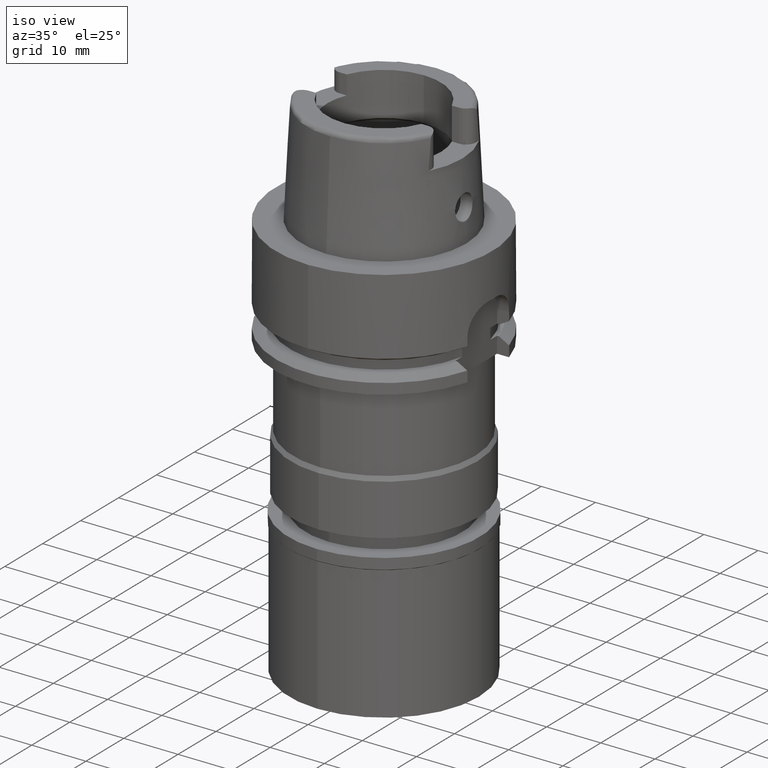
[diagram: clean part render]
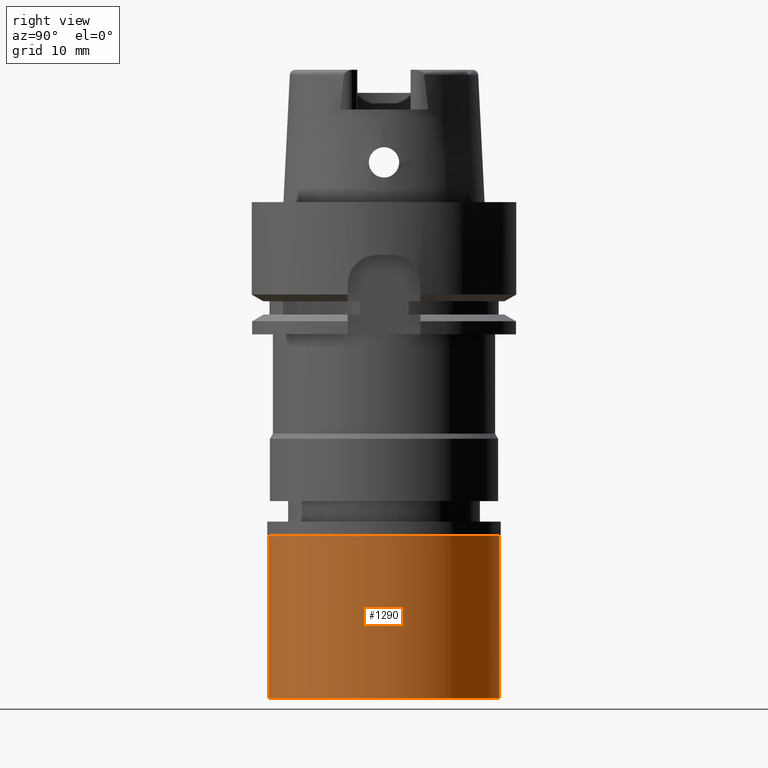
[diagram: tour spotlight — one face highlighted and labeled with its STEP entity id]
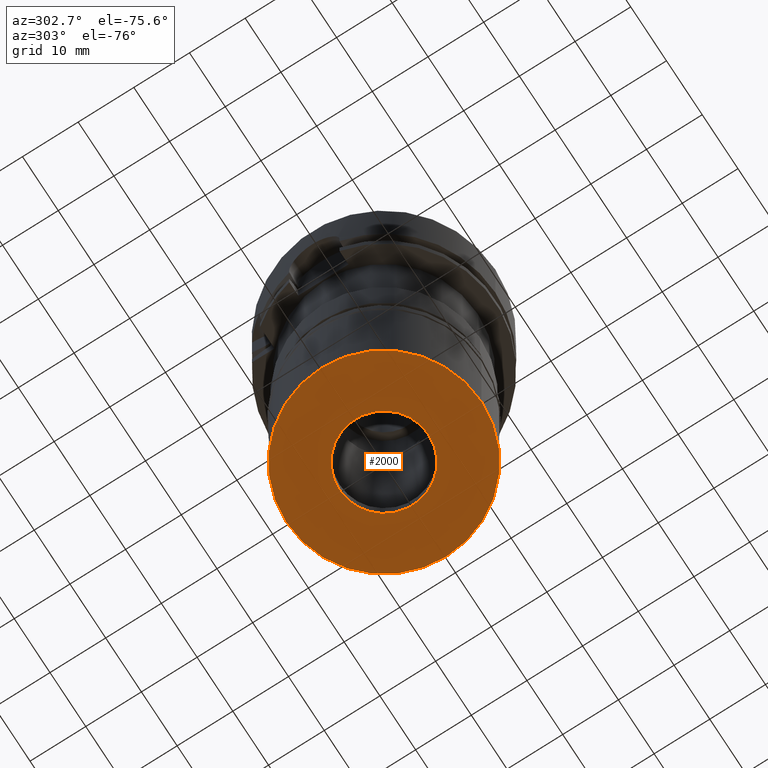
[diagram: tour spotlight — one face highlighted and labeled with its STEP entity id]
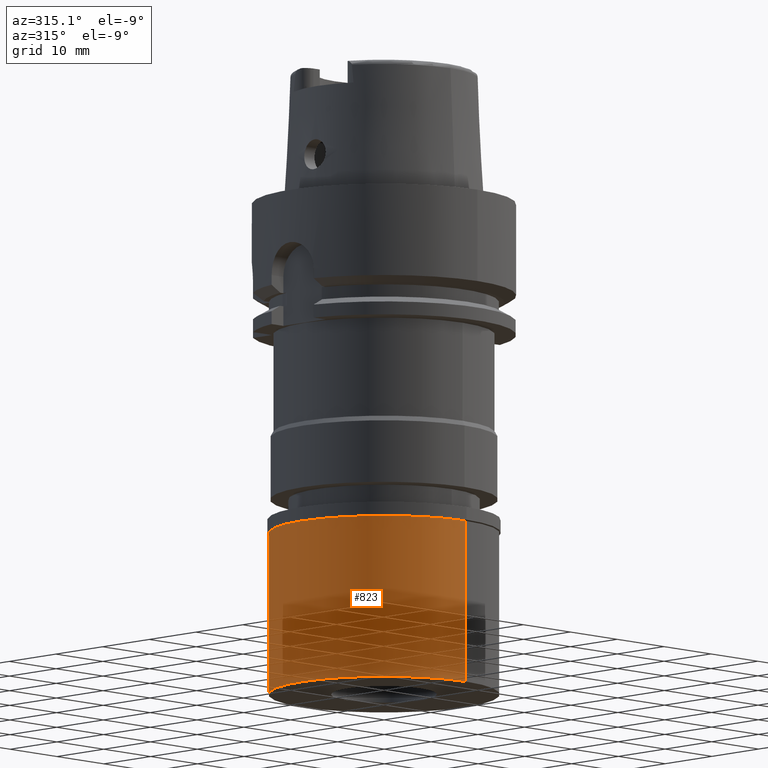
[diagram: tour spotlight — one face highlighted and labeled with its STEP entity id]
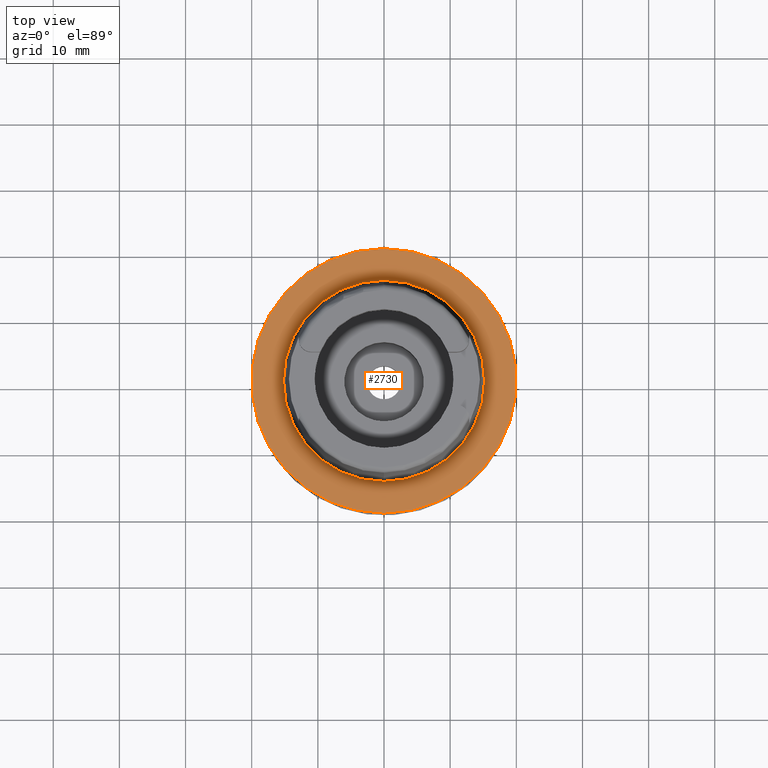
[diagram: tour spotlight — one face highlighted and labeled with its STEP entity id]
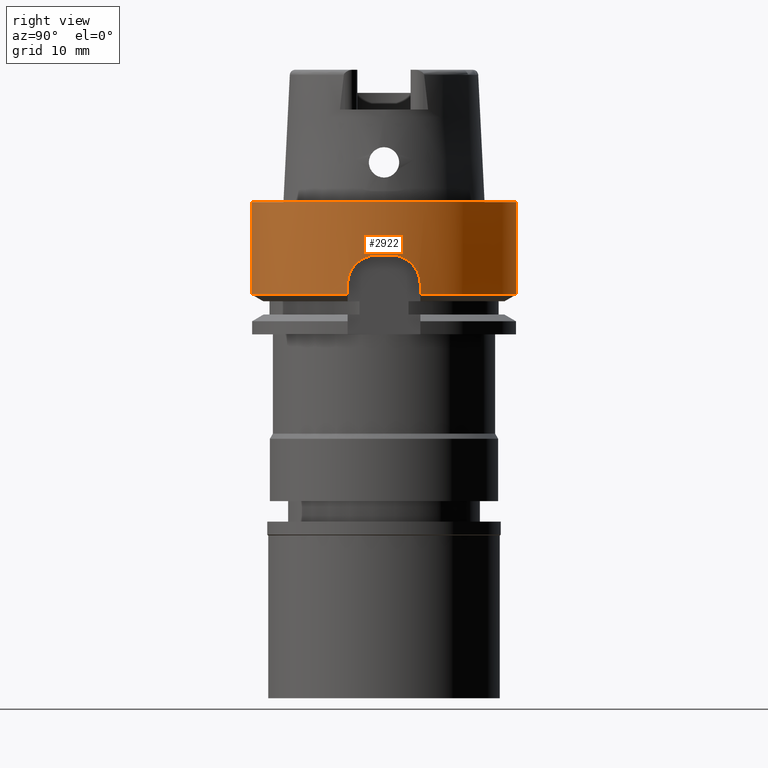
[diagram: tour spotlight — one face highlighted and labeled with its STEP entity id]
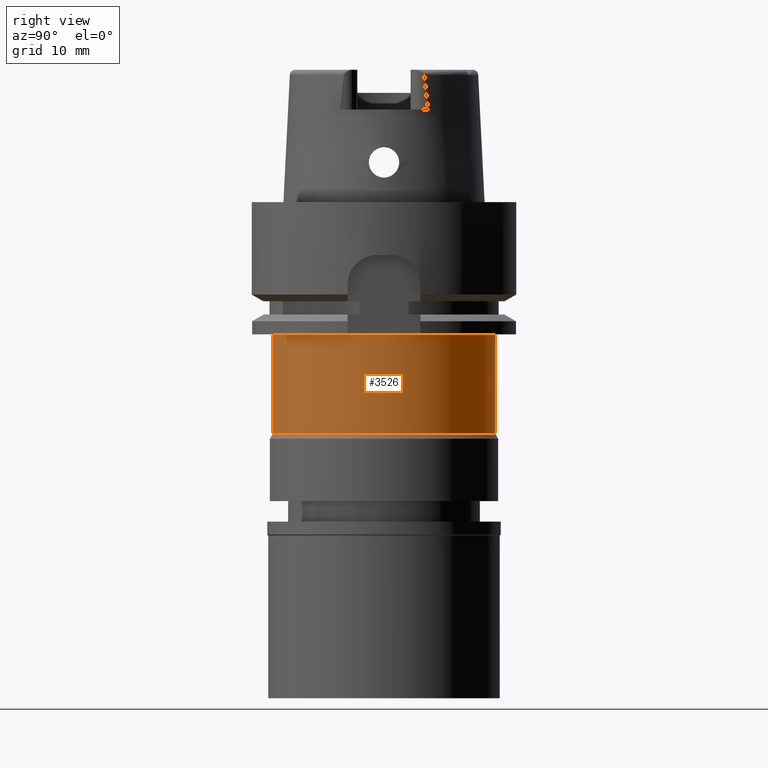
[diagram: tour spotlight — one face highlighted and labeled with its STEP entity id]
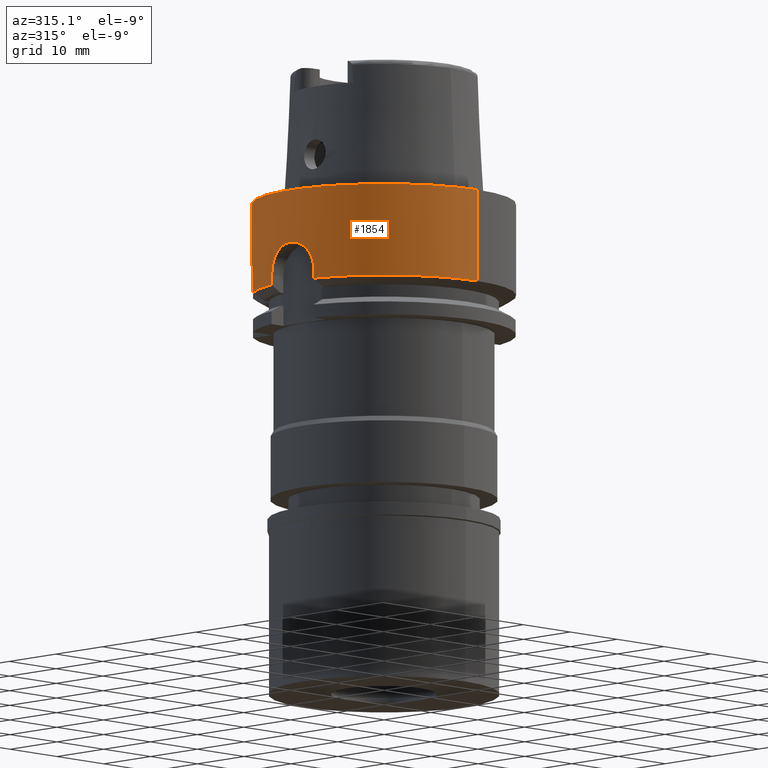
[diagram: tour spotlight — one face highlighted and labeled with its STEP entity id]
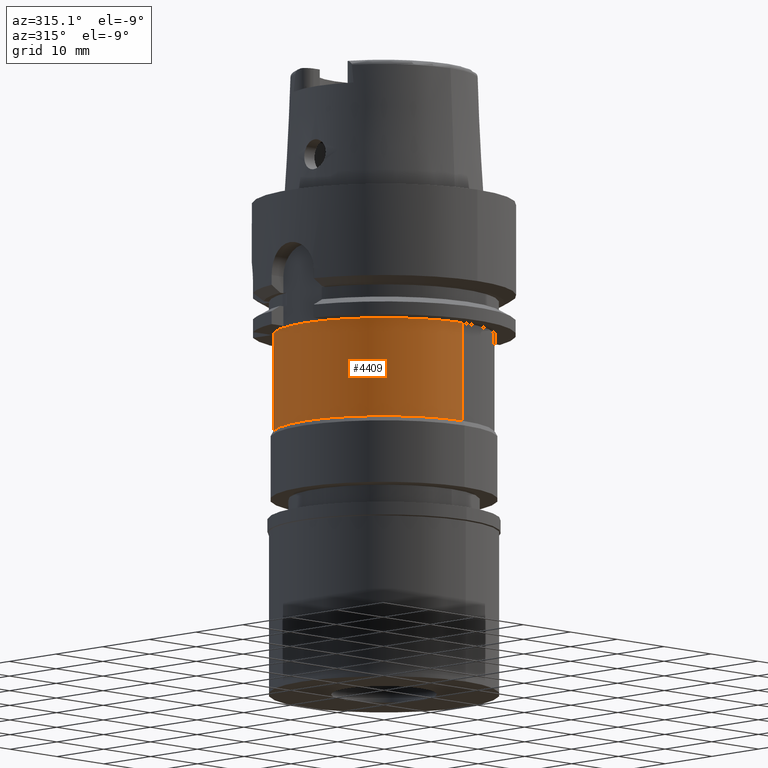
[diagram: tour spotlight — one face highlighted and labeled with its STEP entity id]
A machine part: a face-by-face anatomy tour. The part has 127 B-rep faces; the first image is the clean iso view, then the 8 largest visible faces are spotlighted one at a time (largest first), each with its STEP entity span.

Face 1 — right view, entity #1290. In plain terms, the highlighted cylindrical surface (partial cylindrical patch) has radius 17.5 mm, axis along (0, 0, -1).
Definition (entity closure, byte-faithful):
#6 = ORIENTED_EDGE ( 'NONE', *, *, #3975, .T. ) ;
#263 = ORIENTED_EDGE ( 'NONE', *, *, #3944, .T. ) ;
#324 = DIRECTION ( 'NONE',  ( 0.0000000000000000000, 0.0000000000000000000, -1.000000000000000000 ) ) ;
#463 = CARTESIAN_POINT ( 'NONE',  ( 0.0000000000000000000, -17.50000000000000000, -2.100000000000000089 ) ) ;
#897 = DIRECTION ( 'NONE',  ( 0.0000000000000000000, 0.0000000000000000000, -1.000000000000000000 ) ) ;
#952 = CARTESIAN_POINT ( 'NONE',  ( 0.0000000000000000000, 0.0000000000000000000, 0.0000000000000000000 ) ) ;
#1075 = CARTESIAN_POINT ( 'NONE',  ( 0.0000000000000000000, 17.50000000000000000, -2.100000000000000089 ) ) ;
#1290 = ADVANCED_FACE ( 'NONE', ( #4638 ), #3883, .T. ) ;
#1627 = ORIENTED_EDGE ( 'NONE', *, *, #3663, .F. ) ;
#1872 = CARTESIAN_POINT ( 'NONE',  ( 0.0000000000000000000, 17.50000000000000000, -26.70000000000000284 ) ) ;
#1922 = CIRCLE ( 'NONE', #3497, 17.50000000000000000 ) ;
#2444 = EDGE_LOOP ( 'NONE', ( #6, #263, #3719, #1627 ) ) ;
#2528 = CARTESIAN_POINT ( 'NONE',  ( 0.0000000000000000000, 0.0000000000000000000, -2.100000000000000089 ) ) ;
#2558 = DIRECTION ( 'NONE',  ( 0.0000000000000000000, 0.0000000000000000000, -1.000000000000000000 ) ) ;
#2644 = DIRECTION ( 'NONE',  ( 0.0000000000000000000, -1.000000000000000000, 0.0000000000000000000 ) ) ;
#2657 = CARTESIAN_POINT ( 'NONE',  ( 0.0000000000000000000, 17.50000000000000000, -2.100000000000000089 ) ) ;
#2770 = VECTOR ( 'NONE', #324, 1000.000000000000000 ) ;
#2910 = CARTESIAN_POINT ( 'NONE',  ( 0.0000000000000000000, -17.50000000000000000, -2.100000000000000089 ) ) ;
#3078 = DIRECTION ( 'NONE',  ( 0.0000000000000000000, 0.0000000000000000000, -1.000000000000000000 ) ) ;
#3100 = AXIS2_PLACEMENT_3D ( 'NONE', #952, #3078, #2644 ) ;
#3122 = CIRCLE ( 'NONE', #3930, 17.50000000000000000 ) ;
#3363 = VERTEX_POINT ( 'NONE', #2657 ) ;
#3457 = DIRECTION ( 'NONE',  ( 0.0000000000000000000, 0.0000000000000000000, 1.000000000000000000 ) ) ;
#3483 = EDGE_CURVE ( 'NONE', #4363, #3502, #3122, .T. ) ;
#3492 = CARTESIAN_POINT ( 'NONE',  ( 0.0000000000000000000, -17.50000000000000000, -26.70000000000000284 ) ) ;
#3497 = AXIS2_PLACEMENT_3D ( 'NONE', #2528, #2558, #4239 ) ;
#3502 = VERTEX_POINT ( 'NONE', #1872 ) ;
#3540 = DIRECTION ( 'NONE',  ( 0.0000000000000000000, -1.000000000000000000, 0.0000000000000000000 ) ) ;
#3663 = EDGE_CURVE ( 'NONE', #3363, #3502, #4504, .T. ) ;
#3719 = ORIENTED_EDGE ( 'NONE', *, *, #3483, .T. ) ;
#3883 = CYLINDRICAL_SURFACE ( 'NONE', #3100, 17.50000000000000000 ) ;
#3930 = AXIS2_PLACEMENT_3D ( 'NONE', #5125, #3457, #3540 ) ;
#3944 = EDGE_CURVE ( 'NONE', #4782, #4363, #4969, .T. ) ;
#3975 = EDGE_CURVE ( 'NONE', #3363, #4782, #1922, .T. ) ;
#4015 = VECTOR ( 'NONE', #897, 1000.000000000000000 ) ;
#4239 = DIRECTION ( 'NONE',  ( 0.0000000000000000000, 1.000000000000000000, 0.0000000000000000000 ) ) ;
#4363 = VERTEX_POINT ( 'NONE', #3492 ) ;
#4504 = LINE ( 'NONE', #1075, #2770 ) ;
#4638 = FACE_OUTER_BOUND ( 'NONE', #2444, .T. ) ;
#4782 = VERTEX_POINT ( 'NONE', #2910 ) ;
#4969 = LINE ( 'NONE', #463, #4015 ) ;
#5125 = CARTESIAN_POINT ( 'NONE',  ( 0.0000000000000000000, 0.0000000000000000000, -26.70000000000000284 ) ) ;

Face 2 — auxiliary view, entity #2000. In plain terms, the highlighted planar face has unit normal (0, 0, -1).
Definition (entity closure, byte-faithful):
#19 = ORIENTED_EDGE ( 'NONE', *, *, #4533, .F. ) ;
#147 = ORIENTED_EDGE ( 'NONE', *, *, #4403, .F. ) ;
#276 = CARTESIAN_POINT ( 'NONE',  ( 0.0000000000000000000, 0.0000000000000000000, -26.70000000000000284 ) ) ;
#345 = CIRCLE ( 'NONE', #3500, 17.50000000000000000 ) ;
#619 = CARTESIAN_POINT ( 'NONE',  ( 0.0000000000000000000, 0.0000000000000000000, -26.70000000000000284 ) ) ;
#620 = AXIS2_PLACEMENT_3D ( 'NONE', #276, #3589, #733 ) ;
#683 = EDGE_LOOP ( 'NONE', ( #147, #4132 ) ) ;
#733 = DIRECTION ( 'NONE',  ( 0.0000000000000000000, -1.000000000000000000, 0.0000000000000000000 ) ) ;
#847 = PLANE ( 'NONE',  #4691 ) ;
#868 = AXIS2_PLACEMENT_3D ( 'NONE', #1180, #2447, #4847 ) ;
#873 = EDGE_LOOP ( 'NONE', ( #19, #4673 ) ) ;
#906 = EDGE_CURVE ( 'NONE', #1287, #4331, #4973, .T. ) ;
#1180 = CARTESIAN_POINT ( 'NONE',  ( 0.0000000000000000000, 0.0000000000000000000, -26.70000000000000284 ) ) ;
#1261 = DIRECTION ( 'NONE',  ( 0.0000000000000000000, -1.000000000000000000, 0.0000000000000000000 ) ) ;
#1287 = VERTEX_POINT ( 'NONE', #3505 ) ;
#1872 = CARTESIAN_POINT ( 'NONE',  ( 0.0000000000000000000, 17.50000000000000000, -26.70000000000000284 ) ) ;
#2000 = ADVANCED_FACE ( 'NONE', ( #5011, #2425 ), #847, .T. ) ;
#2110 = CARTESIAN_POINT ( 'NONE',  ( 0.0000000000000000000, 8.000000000000000000, -26.70000000000000284 ) ) ;
#2425 = FACE_BOUND ( 'NONE', #873, .T. ) ;
#2447 = DIRECTION ( 'NONE',  ( 0.0000000000000000000, 0.0000000000000000000, -1.000000000000000000 ) ) ;
#3066 = DIRECTION ( 'NONE',  ( 0.0000000000000000000, 1.000000000000000000, 0.0000000000000000000 ) ) ;
#3122 = CIRCLE ( 'NONE', #3930, 17.50000000000000000 ) ;
#3217 = CIRCLE ( 'NONE', #868, 8.000000000000000000 ) ;
#3457 = DIRECTION ( 'NONE',  ( 0.0000000000000000000, 0.0000000000000000000, 1.000000000000000000 ) ) ;
#3483 = EDGE_CURVE ( 'NONE', #4363, #3502, #3122, .T. ) ;
#3492 = CARTESIAN_POINT ( 'NONE',  ( 0.0000000000000000000, -17.50000000000000000, -26.70000000000000284 ) ) ;
#3500 = AXIS2_PLACEMENT_3D ( 'NONE', #619, #4412, #3066 ) ;
#3502 = VERTEX_POINT ( 'NONE', #1872 ) ;
#3505 = CARTESIAN_POINT ( 'NONE',  ( 0.0000000000000000000, -8.000000000000000000, -26.70000000000000284 ) ) ;
#3540 = DIRECTION ( 'NONE',  ( 0.0000000000000000000, -1.000000000000000000, 0.0000000000000000000 ) ) ;
#3589 = DIRECTION ( 'NONE',  ( 0.0000000000000000000, 0.0000000000000000000, -1.000000000000000000 ) ) ;
#3694 = DIRECTION ( 'NONE',  ( 0.0000000000000000000, 0.0000000000000000000, -1.000000000000000000 ) ) ;
#3930 = AXIS2_PLACEMENT_3D ( 'NONE', #5125, #3457, #3540 ) ;
#4112 = CARTESIAN_POINT ( 'NONE',  ( 0.0000000000000000000, 0.0000000000000000000, -26.70000000000000284 ) ) ;
#4132 = ORIENTED_EDGE ( 'NONE', *, *, #3483, .F. ) ;
#4331 = VERTEX_POINT ( 'NONE', #2110 ) ;
#4363 = VERTEX_POINT ( 'NONE', #3492 ) ;
#4403 = EDGE_CURVE ( 'NONE', #3502, #4363, #345, .T. ) ;
#4412 = DIRECTION ( 'NONE',  ( 0.0000000000000000000, 0.0000000000000000000, 1.000000000000000000 ) ) ;
#4533 = EDGE_CURVE ( 'NONE', #4331, #1287, #3217, .T. ) ;
#4673 = ORIENTED_EDGE ( 'NONE', *, *, #906, .F. ) ;
#4691 = AXIS2_PLACEMENT_3D ( 'NONE', #4112, #3694, #1261 ) ;
#4847 = DIRECTION ( 'NONE',  ( 0.0000000000000000000, 1.000000000000000000, 0.0000000000000000000 ) ) ;
#4973 = CIRCLE ( 'NONE', #620, 8.000000000000000000 ) ;
#5011 = FACE_OUTER_BOUND ( 'NONE', #683, .T. ) ;
#5125 = CARTESIAN_POINT ( 'NONE',  ( 0.0000000000000000000, 0.0000000000000000000, -26.70000000000000284 ) ) ;

Face 3 — auxiliary view, entity #823. In plain terms, the highlighted cylindrical surface (partial cylindrical patch) has radius 17.5 mm, axis along (0, 0, -1).
Definition (entity closure, byte-faithful):
#324 = DIRECTION ( 'NONE',  ( 0.0000000000000000000, 0.0000000000000000000, -1.000000000000000000 ) ) ;
#345 = CIRCLE ( 'NONE', #3500, 17.50000000000000000 ) ;
#463 = CARTESIAN_POINT ( 'NONE',  ( 0.0000000000000000000, -17.50000000000000000, -2.100000000000000089 ) ) ;
#473 = DIRECTION ( 'NONE',  ( 0.0000000000000000000, -1.000000000000000000, 0.0000000000000000000 ) ) ;
#493 = FACE_OUTER_BOUND ( 'NONE', #636, .T. ) ;
#619 = CARTESIAN_POINT ( 'NONE',  ( 0.0000000000000000000, 0.0000000000000000000, -26.70000000000000284 ) ) ;
#636 = EDGE_LOOP ( 'NONE', ( #2193, #4515, #4682, #1525 ) ) ;
#823 = ADVANCED_FACE ( 'NONE', ( #493 ), #5097, .T. ) ;
#897 = DIRECTION ( 'NONE',  ( 0.0000000000000000000, 0.0000000000000000000, -1.000000000000000000 ) ) ;
#1075 = CARTESIAN_POINT ( 'NONE',  ( 0.0000000000000000000, 17.50000000000000000, -2.100000000000000089 ) ) ;
#1346 = CARTESIAN_POINT ( 'NONE',  ( 0.0000000000000000000, 0.0000000000000000000, 0.0000000000000000000 ) ) ;
#1525 = ORIENTED_EDGE ( 'NONE', *, *, #3663, .T. ) ;
#1872 = CARTESIAN_POINT ( 'NONE',  ( 0.0000000000000000000, 17.50000000000000000, -26.70000000000000284 ) ) ;
#2193 = ORIENTED_EDGE ( 'NONE', *, *, #4403, .T. ) ;
#2480 = DIRECTION ( 'NONE',  ( 0.0000000000000000000, 0.0000000000000000000, -1.000000000000000000 ) ) ;
#2657 = CARTESIAN_POINT ( 'NONE',  ( 0.0000000000000000000, 17.50000000000000000, -2.100000000000000089 ) ) ;
#2701 = AXIS2_PLACEMENT_3D ( 'NONE', #1346, #4275, #3862 ) ;
#2768 = CIRCLE ( 'NONE', #4955, 17.50000000000000000 ) ;
#2770 = VECTOR ( 'NONE', #324, 1000.000000000000000 ) ;
#2910 = CARTESIAN_POINT ( 'NONE',  ( 0.0000000000000000000, -17.50000000000000000, -2.100000000000000089 ) ) ;
#3066 = DIRECTION ( 'NONE',  ( 0.0000000000000000000, 1.000000000000000000, 0.0000000000000000000 ) ) ;
#3221 = EDGE_CURVE ( 'NONE', #4782, #3363, #2768, .T. ) ;
#3363 = VERTEX_POINT ( 'NONE', #2657 ) ;
#3492 = CARTESIAN_POINT ( 'NONE',  ( 0.0000000000000000000, -17.50000000000000000, -26.70000000000000284 ) ) ;
#3500 = AXIS2_PLACEMENT_3D ( 'NONE', #619, #4412, #3066 ) ;
#3502 = VERTEX_POINT ( 'NONE', #1872 ) ;
#3663 = EDGE_CURVE ( 'NONE', #3363, #3502, #4504, .T. ) ;
#3862 = DIRECTION ( 'NONE',  ( 0.0000000000000000000, -1.000000000000000000, 0.0000000000000000000 ) ) ;
#3944 = EDGE_CURVE ( 'NONE', #4782, #4363, #4969, .T. ) ;
#4015 = VECTOR ( 'NONE', #897, 1000.000000000000000 ) ;
#4225 = CARTESIAN_POINT ( 'NONE',  ( 0.0000000000000000000, 0.0000000000000000000, -2.100000000000000089 ) ) ;
#4275 = DIRECTION ( 'NONE',  ( 0.0000000000000000000, 0.0000000000000000000, -1.000000000000000000 ) ) ;
#4363 = VERTEX_POINT ( 'NONE', #3492 ) ;
#4403 = EDGE_CURVE ( 'NONE', #3502, #4363, #345, .T. ) ;
#4412 = DIRECTION ( 'NONE',  ( 0.0000000000000000000, 0.0000000000000000000, 1.000000000000000000 ) ) ;
#4504 = LINE ( 'NONE', #1075, #2770 ) ;
#4515 = ORIENTED_EDGE ( 'NONE', *, *, #3944, .F. ) ;
#4682 = ORIENTED_EDGE ( 'NONE', *, *, #3221, .T. ) ;
#4782 = VERTEX_POINT ( 'NONE', #2910 ) ;
#4955 = AXIS2_PLACEMENT_3D ( 'NONE', #4225, #2480, #473 ) ;
#4969 = LINE ( 'NONE', #463, #4015 ) ;
#5097 = CYLINDRICAL_SURFACE ( 'NONE', #2701, 17.50000000000000000 ) ;

Face 4 — top view, entity #2730. In plain terms, the highlighted planar face has unit normal (0, 0, 1).
Definition (entity closure, byte-faithful):
#224 = DIRECTION ( 'NONE',  ( 0.0000000000000000000, 1.000000000000000000, 0.0000000000000000000 ) ) ;
#495 = VERTEX_POINT ( 'NONE', #1518 ) ;
#884 = DIRECTION ( 'NONE',  ( 0.0000000000000000000, 0.0000000000000000000, 1.000000000000000000 ) ) ;
#928 = ORIENTED_EDGE ( 'NONE', *, *, #1730, .F. ) ;
#942 = AXIS2_PLACEMENT_3D ( 'NONE', #4546, #884, #3816 ) ;
#1049 = DIRECTION ( 'NONE',  ( 0.0000000000000000000, 0.0000000000000000000, 1.000000000000000000 ) ) ;
#1174 = EDGE_LOOP ( 'NONE', ( #2499, #928 ) ) ;
#1216 = FACE_BOUND ( 'NONE', #1174, .T. ) ;
#1230 = EDGE_CURVE ( 'NONE', #495, #2617, #3902, .T. ) ;
#1314 = CIRCLE ( 'NONE', #4382, 20.00000000000000000 ) ;
#1518 = CARTESIAN_POINT ( 'NONE',  ( 0.0000000000000000000, -20.00000000000000000, -1.705302565823999875E-13 ) ) ;
#1543 = AXIS2_PLACEMENT_3D ( 'NONE', #3657, #1606, #3267 ) ;
#1569 = ORIENTED_EDGE ( 'NONE', *, *, #1230, .F. ) ;
#1577 = VERTEX_POINT ( 'NONE', #1805 ) ;
#1606 = DIRECTION ( 'NONE',  ( 0.0000000000000000000, 0.0000000000000000000, -1.000000000000000000 ) ) ;
#1684 = DIRECTION ( 'NONE',  ( 0.0000000000000000000, 0.0000000000000000000, 1.000000000000000000 ) ) ;
#1730 = EDGE_CURVE ( 'NONE', #5264, #1577, #5219, .T. ) ;
#1746 = AXIS2_PLACEMENT_3D ( 'NONE', #5231, #1049, #224 ) ;
#1805 = CARTESIAN_POINT ( 'NONE',  ( 0.0000000000000000000, 15.20000663301000010, 7.958078640512999903E-13 ) ) ;
#2007 = CARTESIAN_POINT ( 'NONE',  ( 0.0000000000000000000, 20.00000000000000000, -9.473903143467999112E-14 ) ) ;
#2113 = CARTESIAN_POINT ( 'NONE',  ( 0.0000000000000000000, 0.0000000000000000000, 7.958078640512999903E-13 ) ) ;
#2150 = CARTESIAN_POINT ( 'NONE',  ( 0.0000000000000000000, -15.20000663301000010, 4.547473508865000658E-13 ) ) ;
#2168 = CIRCLE ( 'NONE', #1746, 15.20000663301000010 ) ;
#2499 = ORIENTED_EDGE ( 'NONE', *, *, #3547, .F. ) ;
#2617 = VERTEX_POINT ( 'NONE', #2007 ) ;
#2730 = ADVANCED_FACE ( 'NONE', ( #5079, #1216 ), #5048, .T. ) ;
#2829 = AXIS2_PLACEMENT_3D ( 'NONE', #2113, #1684, #3789 ) ;
#2848 = CARTESIAN_POINT ( 'NONE',  ( 0.0000000000000000000, 0.0000000000000000000, -1.705302565823999875E-13 ) ) ;
#3267 = DIRECTION ( 'NONE',  ( 0.0000000000000000000, -1.000000000000000000, 0.0000000000000000000 ) ) ;
#3547 = EDGE_CURVE ( 'NONE', #1577, #5264, #2168, .T. ) ;
#3657 = CARTESIAN_POINT ( 'NONE',  ( 0.0000000000000000000, 0.0000000000000000000, -1.705302565823999875E-13 ) ) ;
#3789 = DIRECTION ( 'NONE',  ( 0.0000000000000000000, -1.000000000000000000, 0.0000000000000000000 ) ) ;
#3816 = DIRECTION ( 'NONE',  ( 1.000000000000000000, 0.0000000000000000000, 0.0000000000000000000 ) ) ;
#3902 = CIRCLE ( 'NONE', #1543, 20.00000000000000000 ) ;
#4055 = EDGE_LOOP ( 'NONE', ( #4838, #1569 ) ) ;
#4382 = AXIS2_PLACEMENT_3D ( 'NONE', #2848, #4890, #5326 ) ;
#4546 = CARTESIAN_POINT ( 'NONE',  ( 0.0000000000000000000, 0.0000000000000000000, 0.0000000000000000000 ) ) ;
#4838 = ORIENTED_EDGE ( 'NONE', *, *, #5033, .F. ) ;
#4890 = DIRECTION ( 'NONE',  ( 0.0000000000000000000, 0.0000000000000000000, -1.000000000000000000 ) ) ;
#5033 = EDGE_CURVE ( 'NONE', #2617, #495, #1314, .T. ) ;
#5048 = PLANE ( 'NONE',  #942 ) ;
#5079 = FACE_OUTER_BOUND ( 'NONE', #4055, .T. ) ;
#5219 = CIRCLE ( 'NONE', #2829, 15.20000663301000010 ) ;
#5231 = CARTESIAN_POINT ( 'NONE',  ( 0.0000000000000000000, 0.0000000000000000000, 7.958078640512999903E-13 ) ) ;
#5264 = VERTEX_POINT ( 'NONE', #2150 ) ;
#5326 = DIRECTION ( 'NONE',  ( 0.0000000000000000000, 1.000000000000000000, 0.0000000000000000000 ) ) ;

Face 5 — right view, entity #2922. In plain terms, the highlighted cylindrical surface (partial cylindrical patch) has radius 20 mm, axis along (0, 0, 1).
Definition (entity closure, byte-faithful):
#8 = VERTEX_POINT ( 'NONE', #1834 ) ;
#55 = VERTEX_POINT ( 'NONE', #3265 ) ;
#86 = ORIENTED_EDGE ( 'NONE', *, *, #2159, .T. ) ;
#127 = CARTESIAN_POINT ( 'NONE',  ( 19.34392790663267192, 5.081397619116151176, -10.59153971343834932 ) ) ;
#154 = CARTESIAN_POINT ( 'NONE',  ( 19.32104445937009984, 5.167284975352268717, -10.80183977555919839 ) ) ;
#184 = CARTESIAN_POINT ( 'NONE',  ( 19.64372892378963442, 3.757534281542509014, -8.940804196875246745 ) ) ;
#192 = CARTESIAN_POINT ( 'NONE',  ( 19.22888438501999531, 5.500000482516000488, -13.97927001444999817 ) ) ;
#200 = ORIENTED_EDGE ( 'NONE', *, *, #854, .F. ) ;
#235 = CARTESIAN_POINT ( 'NONE',  ( 19.79878724724450834, -2.832227449863178315, -8.387867633450946769 ) ) ;
#259 = CARTESIAN_POINT ( 'NONE',  ( 19.56709572652412632, -4.138719417116023536, -9.275258457733377426 ) ) ;
#285 = CARTESIAN_POINT ( 'NONE',  ( 19.69235738726364460, -3.494442703320565169, -8.754635223990364423 ) ) ;
#308 = CARTESIAN_POINT ( 'NONE',  ( 19.86146910056350734, -2.348871068550091312, -8.206248359973814743 ) ) ;
#334 = CARTESIAN_POINT ( 'NONE',  ( 19.70267213809070839, -3.435873196015323039, -8.716183529042982769 ) ) ;
#344 = VECTOR ( 'NONE', #2388, 1000.000000000000000 ) ;
#415 = CARTESIAN_POINT ( 'NONE',  ( 19.32339585466795739, -5.158492913146010217, -10.78041865483601391 ) ) ;
#443 = ORIENTED_EDGE ( 'NONE', *, *, #2366, .T. ) ;
#495 = VERTEX_POINT ( 'NONE', #1518 ) ;
#500 = CARTESIAN_POINT ( 'NONE',  ( 19.80285706674259316, 2.801246046156184111, -8.376054429798854173 ) ) ;
#561 = CARTESIAN_POINT ( 'NONE',  ( 19.45429869781315446, 4.644412652590448332, -9.855112538904846176 ) ) ;
#589 = CARTESIAN_POINT ( 'NONE',  ( 19.37460722628846810, 4.968141091675939869, -10.35745565407660074 ) ) ;
#595 = CARTESIAN_POINT ( 'NONE',  ( 19.22888452303000051, -5.500000000000000000, -12.50000000000000000 ) ) ;
#616 = CARTESIAN_POINT ( 'NONE',  ( 19.59903263455299438, 3.985266675279852233, -9.129532234788975131 ) ) ;
#624 = DIRECTION ( 'NONE',  ( 0.0000000000000000000, 0.0000000000000000000, 1.000000000000000000 ) ) ;
#650 = CARTESIAN_POINT ( 'NONE',  ( 19.57603633007878230, -4.096177702054417225, -9.234171355925163027 ) ) ;
#676 = ORIENTED_EDGE ( 'NONE', *, *, #2087, .F. ) ;
#681 = CARTESIAN_POINT ( 'NONE',  ( 0.0000000000000000000, 20.00000000000000000, -9.473903143467999112E-14 ) ) ;
#693 = CARTESIAN_POINT ( 'NONE',  ( 19.82004290328007912, -2.676439156258794139, -8.323919576283993038 ) ) ;
#742 = CARTESIAN_POINT ( 'NONE',  ( 19.56053743362919306, -4.169621998343442826, -9.305705765954444431 ) ) ;
#854 = EDGE_CURVE ( 'NONE', #2617, #55, #4795, .T. ) ;
#896 = EDGE_CURVE ( 'NONE', #1076, #4617, #4291, .T. ) ;
#936 = CARTESIAN_POINT ( 'NONE',  ( 19.89335567336763688, 2.144328412525799976, -8.101629999677319560 ) ) ;
#1027 = CARTESIAN_POINT ( 'NONE',  ( 19.23659385547791345, 5.474636443450911827, -11.94125865184279611 ) ) ;
#1062 = CARTESIAN_POINT ( 'NONE',  ( 19.60625041659560708, -3.948170071313325202, -9.099824147836113042 ) ) ;
#1076 = VERTEX_POINT ( 'NONE', #1583 ) ;
#1083 = CARTESIAN_POINT ( 'NONE',  ( 19.33808127859726156, -5.103432223509834387, -10.65263608815264895 ) ) ;
#1109 = CARTESIAN_POINT ( 'NONE',  ( 19.39600780302421157, -4.882167647076518513, -10.21950844960858440 ) ) ;
#1134 = CARTESIAN_POINT ( 'NONE',  ( 19.45475018714828863, -4.645026843425603680, -9.844581254046000041 ) ) ;
#1140 = AXIS2_PLACEMENT_3D ( 'NONE', #3184, #2340, #1920 ) ;
#1277 = DIRECTION ( 'NONE',  ( 0.9987492177719088371, -0.04999999999999998890, 0.0000000000000000000 ) ) ;
#1286 = CARTESIAN_POINT ( 'NONE',  ( 19.22888452303000051, -5.499999999998999911, -13.97927405783999966 ) ) ;
#1289 = CARTESIAN_POINT ( 'NONE',  ( 19.22888452303000051, -5.500000000000000000, -12.50000000000000000 ) ) ;
#1314 = CIRCLE ( 'NONE', #4382, 20.00000000000000000 ) ;
#1322 = LINE ( 'NONE', #5043, #2610 ) ;
#1365 = CARTESIAN_POINT ( 'NONE',  ( 19.97498435543999662, -1.000000000000000000, -8.000000000000000000 ) ) ;
#1377 = CARTESIAN_POINT ( 'NONE',  ( 19.29610026531021560, 5.260308519036162700, -11.04748964022064861 ) ) ;
#1397 = CARTESIAN_POINT ( 'NONE',  ( 0.0000000000000000000, 0.0000000000000000000, -13.97927405783999966 ) ) ;
#1413 = CARTESIAN_POINT ( 'NONE',  ( 19.66628108875334391, 3.637937545180742749, -8.851332620169239718 ) ) ;
#1440 = ORIENTED_EDGE ( 'NONE', *, *, #5033, .T. ) ;
#1441 = CARTESIAN_POINT ( 'NONE',  ( 19.80744021060070992, 2.768533228843042870, -8.361899853709935826 ) ) ;
#1474 = VECTOR ( 'NONE', #3953, 1000.000000000000000 ) ;
#1518 = CARTESIAN_POINT ( 'NONE',  ( 0.0000000000000000000, -20.00000000000000000, -1.705302565823999875E-13 ) ) ;
#1522 = CARTESIAN_POINT ( 'NONE',  ( 19.88634664951654329, -2.130603934775300523, -8.141702171045814396 ) ) ;
#1531 = VERTEX_POINT ( 'NONE', #4148 ) ;
#1545 = CARTESIAN_POINT ( 'NONE',  ( 19.58334044020901743, -4.060857313233294796, -9.201193650373639343 ) ) ;
#1549 = ORIENTED_EDGE ( 'NONE', *, *, #896, .T. ) ;
#1583 = CARTESIAN_POINT ( 'NONE',  ( 0.0000000000000000000, -20.00000000000000000, -13.97927405783999966 ) ) ;
#1593 = CARTESIAN_POINT ( 'NONE',  ( 19.72182370922860528, -3.324154676730149749, -8.646448266031747210 ) ) ;
#1641 = AXIS2_PLACEMENT_3D ( 'NONE', #4370, #624, #2634 ) ;
#1645 = CARTESIAN_POINT ( 'NONE',  ( 19.32540921218521035, -5.150933045007605848, -10.76223087731250416 ) ) ;
#1656 = EDGE_CURVE ( 'NONE', #4677, #8, #2256, .T. ) ;
#1732 = B_SPLINE_CURVE_WITH_KNOTS ( 'NONE', 3,
 ( #2713, #4007, #2805, #2306, #1522, #308, #5265, #4394, #4873, #693, #3149, #3984, #235, #3173, #3600, #2375, #1593, #4804, #334, #3574, #2002, #4056, #1976, #285, #3646, #1956, #4849, #5284, #4491, #1062, #2353, #1545, #650, #259, #3196, #742, #1933, #2397, #4080, #1134, #1109, #1906, #3671, #4827, #1083, #5335, #2737, #1645, #2107, #4165, #415, #3311, #4223, #1289 ),
 .UNSPECIFIED., .F., .F.,
 ( 4, 2, 2, 1, 1, 1, 2, 2, 2, 2, 1, 1, 1, 1, 1, 2, 2, 2, 2, 2, 1, 1, 1, 2, 2, 2, 2, 2, 1, 1, 1, 2, 2, 4 ),
 ( 0.0000000000000000000, 0.1250000000000124067, 0.1875000000000186795, 0.2187500000000218159, 0.2343750000000233980, 0.2421875000000241751, 0.2460937500000247857, 0.2500000000000253686, 0.3125000000000326406, 0.3437500000000360822, 0.3593750000000378031, 0.3671875000000387468, 0.3710937500000392464, 0.3730468750000398015, 0.3740234375000399680, 0.3745117187500400791, 0.3750000000000401901, 0.4375000000000434097, 0.4687500000000452416, 0.4843750000000460743, 0.4921875000000464073, 0.4960937500000462963, 0.4980468750000463518, 0.4990234375000461298, 0.5000000000000459632, 0.6250000000000286438, 0.6875000000000200950, 0.7187500000000159872, 0.7343750000000143219, 0.7421875000000135447, 0.7460937500000132117, 0.7480468750000131006, 0.7500000000000128786, 1.000000000000000000 ),
 .UNSPECIFIED. ) ;
#1735 = CARTESIAN_POINT ( 'NONE',  ( 19.30832678473931452, 5.214864014496221500, -10.92283349830751682 ) ) ;
#1798 = CARTESIAN_POINT ( 'NONE',  ( 19.48953007569705775, 4.491951112894845721, -9.660445326955763079 ) ) ;
#1825 = CARTESIAN_POINT ( 'NONE',  ( 19.71061661248226571, 3.394884962856233646, -8.687387489450262734 ) ) ;
#1834 = CARTESIAN_POINT ( 'NONE',  ( 19.22888452303000051, 5.500000000000000000, -12.50000000000000000 ) ) ;
#1856 = CARTESIAN_POINT ( 'NONE',  ( 19.94751910473039302, 1.548617953099933775, -8.000000000000000000 ) ) ;
#1906 = CARTESIAN_POINT ( 'NONE',  ( 19.37849386907994287, -4.950198544413487944, -10.34065838130613102 ) ) ;
#1920 = DIRECTION ( 'NONE',  ( 0.0000000000000000000, -1.000000000000000000, 0.0000000000000000000 ) ) ;
#1933 = CARTESIAN_POINT ( 'NONE',  ( 19.55921030672423200, -4.175847404119202189, -9.311895150439895019 ) ) ;
#1938 = EDGE_CURVE ( 'NONE', #5364, #2815, #1732, .T. ) ;
#1956 = CARTESIAN_POINT ( 'NONE',  ( 19.69006013269829225, -3.507378425149984214, -8.763260683040345000 ) ) ;
#1976 = CARTESIAN_POINT ( 'NONE',  ( 19.69274314928327385, -3.492268379235048847, -8.753188017609103255 ) ) ;
#2002 = CARTESIAN_POINT ( 'NONE',  ( 19.69466798792677764, -3.481402031415772758, -8.745976627347804566 ) ) ;
#2007 = CARTESIAN_POINT ( 'NONE',  ( 0.0000000000000000000, 20.00000000000000000, -9.473903143467999112E-14 ) ) ;
#2087 = EDGE_CURVE ( 'NONE', #8, #1531, #3677, .T. ) ;
#2107 = CARTESIAN_POINT ( 'NONE',  ( 19.32433041969931153, -5.154983158805051424, -10.77195855819415016 ) ) ;
#2159 = EDGE_CURVE ( 'NONE', #495, #1076, #4364, .T. ) ;
#2162 = CARTESIAN_POINT ( 'NONE',  ( 19.28670451638931382, 5.294861289737768928, -11.15473651113127040 ) ) ;
#2221 = CARTESIAN_POINT ( 'NONE',  ( 19.55092274637010163, 4.214494902110187624, -9.350849150109660002 ) ) ;
#2249 = CARTESIAN_POINT ( 'NONE',  ( 19.76304889699247624, 3.072041751453935987, -8.504730640440284262 ) ) ;
#2256 = LINE ( 'NONE', #192, #5293 ) ;
#2265 = DIRECTION ( 'NONE',  ( 0.0000000000000000000, 0.0000000000000000000, 1.000000000000000000 ) ) ;
#2277 = CARTESIAN_POINT ( 'NONE',  ( 19.26935851838152303, 5.358219115071505279, -11.36942689077163138 ) ) ;
#2306 = CARTESIAN_POINT ( 'NONE',  ( 19.90130047640526101, -1.985477846189919182, -8.106792409415675138 ) ) ;
#2340 = DIRECTION ( 'NONE',  ( 0.0000000000000000000, 0.0000000000000000000, 1.000000000000000000 ) ) ;
#2353 = CARTESIAN_POINT ( 'NONE',  ( 19.59746964134252423, -3.991897465437485693, -9.138090891540272764 ) ) ;
#2366 = EDGE_CURVE ( 'NONE', #5364, #1531, #5138, .T. ) ;
#2375 = CARTESIAN_POINT ( 'NONE',  ( 19.73879065019939105, -3.222290560419200034, -8.586223259303471522 ) ) ;
#2388 = DIRECTION ( 'NONE',  ( 0.0000000000000000000, -4.549132851063000272E-14, -1.000000000000000000 ) ) ;
#2397 = CARTESIAN_POINT ( 'NONE',  ( 19.55831082386046305, -4.180059027277867933, -9.316097855251991078 ) ) ;
#2569 = CARTESIAN_POINT ( 'NONE',  ( 19.25972185282163096, 5.392789179769893693, -11.51281003808972336 ) ) ;
#2581 = DIRECTION ( 'NONE',  ( 0.0000000000000000000, 0.0000000000000000000, 1.000000000000000000 ) ) ;
#2605 = FACE_OUTER_BOUND ( 'NONE', #3243, .T. ) ;
#2610 = VECTOR ( 'NONE', #3000, 1000.000000000000227 ) ;
#2617 = VERTEX_POINT ( 'NONE', #2007 ) ;
#2626 = CARTESIAN_POINT ( 'NONE',  ( 19.31475624754254383, 5.190847333188882473, -10.86066003662792667 ) ) ;
#2634 = DIRECTION ( 'NONE',  ( 0.0000000000000000000, 1.000000000000000000, 0.0000000000000000000 ) ) ;
#2682 = CARTESIAN_POINT ( 'NONE',  ( 19.50178311366427053, 4.437984536267503444, -9.595210275418356360 ) ) ;
#2689 = CYLINDRICAL_SURFACE ( 'NONE', #1641, 20.00000000000000000 ) ;
#2713 = CARTESIAN_POINT ( 'NONE',  ( 19.97498435543999662, -1.000000000000000000, -8.000000000000000000 ) ) ;
#2737 = CARTESIAN_POINT ( 'NONE',  ( 19.32796878144531760, -5.141330893535842606, -10.73939453384817888 ) ) ;
#2789 = CIRCLE ( 'NONE', #4460, 20.00000000000000355 ) ;
#2805 = CARTESIAN_POINT ( 'NONE',  ( 19.94126833983147762, -1.553961943769635701, -8.024635853692970500 ) ) ;
#2815 = VERTEX_POINT ( 'NONE', #595 ) ;
#2848 = CARTESIAN_POINT ( 'NONE',  ( 0.0000000000000000000, 0.0000000000000000000, -1.705302565823999875E-13 ) ) ;
#2922 = ADVANCED_FACE ( 'NONE', ( #2605 ), #2689, .T. ) ;
#2968 = CARTESIAN_POINT ( 'NONE',  ( 19.31805002971633556, 5.178514043765850339, -10.82961678952888107 ) ) ;
#3000 = DIRECTION ( 'NONE',  ( 1.984333148216989280E-08, 6.937751377431961023E-08, -0.9999999999999973355 ) ) ;
#3029 = CARTESIAN_POINT ( 'NONE',  ( 19.54241320308902274, 4.253900727536592541, -9.391460062544803478 ) ) ;
#3063 = CARTESIAN_POINT ( 'NONE',  ( 19.77827450582005753, 2.972167438782975957, -8.453965286101098542 ) ) ;
#3089 = CARTESIAN_POINT ( 'NONE',  ( 19.97498435543999662, 1.000000000000000000, -8.000000000000000000 ) ) ;
#3149 = CARTESIAN_POINT ( 'NONE',  ( 19.81758746035377783, -2.694603807295325115, -8.331257517394250911 ) ) ;
#3173 = CARTESIAN_POINT ( 'NONE',  ( 19.78036261493040371, -2.958436143124367312, -8.445803887004176502 ) ) ;
#3184 = CARTESIAN_POINT ( 'NONE',  ( 0.0000000000000000000, 0.0000000000000000000, -13.97927405783999966 ) ) ;
#3196 = CARTESIAN_POINT ( 'NONE',  ( 19.56252063931276908, -4.160305377286071860, -9.296470220453500133 ) ) ;
#3243 = EDGE_LOOP ( 'NONE', ( #443, #676, #4139, #3670, #200, #1440, #86, #1549, #4075, #4233 ) ) ;
#3265 = CARTESIAN_POINT ( 'NONE',  ( 0.0000000000000000000, 20.00000000000000000, -13.97927405783999966 ) ) ;
#3311 = CARTESIAN_POINT ( 'NONE',  ( 19.26022506823638025, -5.395878610410441034, -11.35624131249877777 ) ) ;
#3460 = CARTESIAN_POINT ( 'NONE',  ( 19.54750938070755595, 4.230322960359848672, -9.367087278134071937 ) ) ;
#3488 = CARTESIAN_POINT ( 'NONE',  ( 19.73203759430899851, 3.268435167373596073, -8.610740559921120862 ) ) ;
#3521 = CARTESIAN_POINT ( 'NONE',  ( 19.55296420876892327, 4.205003748720230305, -9.341196998753346747 ) ) ;
#3574 = CARTESIAN_POINT ( 'NONE',  ( 19.69735038646263803, -3.466205823308610157, -8.735957270000557884 ) ) ;
#3600 = CARTESIAN_POINT ( 'NONE',  ( 19.74957719972404036, -3.155379730487867462, -8.549071909065716568 ) ) ;
#3646 = CARTESIAN_POINT ( 'NONE',  ( 19.69198617144260766, -3.496533464395958912, -8.756028756605941155 ) ) ;
#3670 = ORIENTED_EDGE ( 'NONE', *, *, #5392, .T. ) ;
#3671 = CARTESIAN_POINT ( 'NONE',  ( 19.35532325930916286, -5.038565037821300052, -10.51399933864187730 ) ) ;
#3677 = B_SPLINE_CURVE_WITH_KNOTS ( 'NONE', 3,
 ( #4251, #5161, #1027, #2569, #2277, #2162, #1377, #1735, #2626, #2968, #3835, #4684, #154, #127, #589, #4311, #561, #1798, #2682, #5189, #3866, #3029, #3460, #2221, #3521, #3895, #616, #184, #1413, #1825, #3488, #2249, #3063, #3925, #500, #1441, #936, #1856, #3089 ),
 .UNSPECIFIED., .F., .F.,
 ( 4, 2, 2, 1, 1, 1, 1, 2, 2, 2, 2, 2, 1, 1, 2, 2, 2, 2, 2, 1, 2, 2, 4 ),
 ( 0.0000000000000000000, 0.1249999999999564237, 0.1874999999999346356, 0.2187499999999236999, 0.2343749999999185374, 0.2421874999999159561, 0.2460937499999149847, 0.2480468749999147626, 0.2499999999999145128, 0.3749999999999172329, 0.4374999999999185651, 0.4687499999999193423, 0.4843749999999195643, 0.4921874999999197864, 0.4960937499999198419, 0.4999999999999198419, 0.5624999999999291678, 0.6249999999999386047, 0.6874999999999481526, 0.7187499999999529265, 0.7343749999999555911, 0.7499999999999582556, 1.000000000000000000 ),
 .UNSPECIFIED. ) ;
#3796 = CARTESIAN_POINT ( 'NONE',  ( 0.0000000000000000000, 0.0000000000000000000, -8.000000000000000000 ) ) ;
#3835 = CARTESIAN_POINT ( 'NONE',  ( 19.31947859009914481, 5.173158578109479322, -10.81632238107481037 ) ) ;
#3866 = CARTESIAN_POINT ( 'NONE',  ( 19.53068921810605119, 4.307772359132893136, -9.448422801239811264 ) ) ;
#3895 = CARTESIAN_POINT ( 'NONE',  ( 19.57669236913186595, 4.094477243184129200, -9.229513695137550044 ) ) ;
#3915 = AXIS2_PLACEMENT_3D ( 'NONE', #3796, #2581, #1277 ) ;
#3925 = CARTESIAN_POINT ( 'NONE',  ( 19.79308005087640865, 2.869920567982270576, -8.406735843582557877 ) ) ;
#3953 = DIRECTION ( 'NONE',  ( 0.0000000000000000000, 4.549132851063000272E-14, -1.000000000000000000 ) ) ;
#3984 = CARTESIAN_POINT ( 'NONE',  ( 19.81613325514081936, -2.705294497730726277, -8.335622991198880172 ) ) ;
#4007 = CARTESIAN_POINT ( 'NONE',  ( 19.96138875912902932, -1.271571823541636892, -8.000000000000000000 ) ) ;
#4056 = CARTESIAN_POINT ( 'NONE',  ( 19.69332140797839870, -3.489007400813726179, -8.751019594726225037 ) ) ;
#4075 = ORIENTED_EDGE ( 'NONE', *, *, #4288, .F. ) ;
#4080 = CARTESIAN_POINT ( 'NONE',  ( 19.50217921961935019, -4.442594003639351641, -9.578651589181612636 ) ) ;
#4139 = ORIENTED_EDGE ( 'NONE', *, *, #1656, .F. ) ;
#4148 = CARTESIAN_POINT ( 'NONE',  ( 19.97498435543999662, 1.000000000000000000, -8.000000000000000000 ) ) ;
#4165 = CARTESIAN_POINT ( 'NONE',  ( 19.32361526154613784, -5.157668876976990724, -10.77843043011066726 ) ) ;
#4223 = CARTESIAN_POINT ( 'NONE',  ( 19.22888452303000051, -5.500000000000000000, -11.94492879371335725 ) ) ;
#4233 = ORIENTED_EDGE ( 'NONE', *, *, #1938, .F. ) ;
#4251 = CARTESIAN_POINT ( 'NONE',  ( 19.22888452303000051, 5.500000000000000000, -12.50000000000000000 ) ) ;
#4288 = EDGE_CURVE ( 'NONE', #2815, #4617, #1322, .T. ) ;
#4291 = CIRCLE ( 'NONE', #1140, 20.00000000000000000 ) ;
#4311 = CARTESIAN_POINT ( 'NONE',  ( 19.43284809391422741, 4.733461551052060123, -9.983469681041015065 ) ) ;
#4364 = LINE ( 'NONE', #4715, #1474 ) ;
#4370 = CARTESIAN_POINT ( 'NONE',  ( 0.0000000000000000000, 0.0000000000000000000, -68.20000000000000284 ) ) ;
#4382 = AXIS2_PLACEMENT_3D ( 'NONE', #2848, #4890, #5326 ) ;
#4394 = CARTESIAN_POINT ( 'NONE',  ( 19.83212258909064474, -2.585548732763233382, -8.288267443648436483 ) ) ;
#4460 = AXIS2_PLACEMENT_3D ( 'NONE', #1397, #2265, #4817 ) ;
#4491 = CARTESIAN_POINT ( 'NONE',  ( 19.63067666584713677, -3.824795347894597519, -8.995411347587680240 ) ) ;
#4617 = VERTEX_POINT ( 'NONE', #1286 ) ;
#4629 = DIRECTION ( 'NONE',  ( 9.329869329024391789E-08, -3.261851728937140918E-07, 0.9999999999999423794 ) ) ;
#4651 = CARTESIAN_POINT ( 'NONE',  ( 19.22888438501999531, 5.500000482516000488, -13.97927001444999817 ) ) ;
#4677 = VERTEX_POINT ( 'NONE', #4651 ) ;
#4684 = CARTESIAN_POINT ( 'NONE',  ( 19.32043472801017003, 5.169572748142614138, -10.80746168715010214 ) ) ;
#4715 = CARTESIAN_POINT ( 'NONE',  ( 0.0000000000000000000, -20.00000000000000000, -9.473903143467999112E-14 ) ) ;
#4795 = LINE ( 'NONE', #681, #344 ) ;
#4804 = CARTESIAN_POINT ( 'NONE',  ( 19.71314345957226877, -3.375460247442926942, -8.677685215501975691 ) ) ;
#4817 = DIRECTION ( 'NONE',  ( 0.9614442261514726251, 0.2749999999999924727, 0.0000000000000000000 ) ) ;
#4827 = CARTESIAN_POINT ( 'NONE',  ( 19.34811643790983737, -5.065740602188848918, -10.57039094668054346 ) ) ;
#4849 = CARTESIAN_POINT ( 'NONE',  ( 19.67792994977889620, -3.575208927576498219, -8.806736259760192809 ) ) ;
#4873 = CARTESIAN_POINT ( 'NONE',  ( 19.82370695197716870, -2.649185133215911758, -8.313013301143985956 ) ) ;
#4890 = DIRECTION ( 'NONE',  ( 0.0000000000000000000, 0.0000000000000000000, -1.000000000000000000 ) ) ;
#5033 = EDGE_CURVE ( 'NONE', #2617, #495, #1314, .T. ) ;
#5043 = CARTESIAN_POINT ( 'NONE',  ( 19.22888452303000051, -5.500000000000000000, -12.50000000000000000 ) ) ;
#5138 = CIRCLE ( 'NONE', #3915, 20.00000000000000355 ) ;
#5161 = CARTESIAN_POINT ( 'NONE',  ( 19.22888452303000051, 5.499999999999999112, -12.22452500514304496 ) ) ;
#5189 = CARTESIAN_POINT ( 'NONE',  ( 19.52092653862397853, 4.352013082579936132, -9.497352243747972267 ) ) ;
#5265 = CARTESIAN_POINT ( 'NONE',  ( 19.84841862393197687, -2.458145788864217529, -8.241565015714702014 ) ) ;
#5284 = CARTESIAN_POINT ( 'NONE',  ( 19.64440606333782569, -3.753015825167244301, -8.939609798731513735 ) ) ;
#5293 = VECTOR ( 'NONE', #4629, 1000.000000000000114 ) ;
#5326 = DIRECTION ( 'NONE',  ( 0.0000000000000000000, 1.000000000000000000, 0.0000000000000000000 ) ) ;
#5335 = CARTESIAN_POINT ( 'NONE',  ( 19.33325746713757098, -5.121509964609114007, -10.69317378611352609 ) ) ;
#5364 = VERTEX_POINT ( 'NONE', #1365 ) ;
#5392 = EDGE_CURVE ( 'NONE', #4677, #55, #2789, .T. ) ;

Face 6 — right view, entity #3526. In plain terms, the highlighted cylindrical surface (partial cylindrical patch) has radius 16.8 mm, axis along (0, 0, 1).
Definition (entity closure, byte-faithful):
#17 = AXIS2_PLACEMENT_3D ( 'NONE', #1765, #413, #3748 ) ;
#146 = EDGE_CURVE ( 'NONE', #5188, #4664, #3586, .T. ) ;
#413 = DIRECTION ( 'NONE',  ( 0.0000000000000000000, 0.0000000000000000000, 1.000000000000000000 ) ) ;
#528 = FACE_OUTER_BOUND ( 'NONE', #1990, .T. ) ;
#557 = DIRECTION ( 'NONE',  ( 0.0000000000000000000, 1.000000000000000000, 0.0000000000000000000 ) ) ;
#588 = VERTEX_POINT ( 'NONE', #1729 ) ;
#862 = EDGE_CURVE ( 'NONE', #4664, #2465, #5230, .T. ) ;
#954 = ORIENTED_EDGE ( 'NONE', *, *, #3061, .F. ) ;
#1193 = DIRECTION ( 'NONE',  ( 0.0000000000000000000, 0.0000000000000000000, -1.000000000000000000 ) ) ;
#1729 = CARTESIAN_POINT ( 'NONE',  ( 0.0000000000000000000, 16.80000000000000071, -35.00000000000000000 ) ) ;
#1765 = CARTESIAN_POINT ( 'NONE',  ( 0.0000000000000000000, 0.0000000000000000000, -35.00000000000000000 ) ) ;
#1926 = AXIS2_PLACEMENT_3D ( 'NONE', #3736, #1193, #5398 ) ;
#1990 = EDGE_LOOP ( 'NONE', ( #3086, #4772, #4953, #954 ) ) ;
#1997 = AXIS2_PLACEMENT_3D ( 'NONE', #2678, #2623, #557 ) ;
#2093 = CARTESIAN_POINT ( 'NONE',  ( 0.0000000000000000000, -16.80000000000000071, -35.00000000000000000 ) ) ;
#2104 = CARTESIAN_POINT ( 'NONE',  ( 0.0000000000000000000, -16.80000000000000071, -20.00000000000000000 ) ) ;
#2346 = CIRCLE ( 'NONE', #17, 16.80000000000000071 ) ;
#2355 = LINE ( 'NONE', #3198, #4084 ) ;
#2465 = VERTEX_POINT ( 'NONE', #2093 ) ;
#2623 = DIRECTION ( 'NONE',  ( 0.0000000000000000000, 0.0000000000000000000, 1.000000000000000000 ) ) ;
#2678 = CARTESIAN_POINT ( 'NONE',  ( 0.0000000000000000000, 0.0000000000000000000, -68.20000000000000284 ) ) ;
#3061 = EDGE_CURVE ( 'NONE', #5188, #588, #2355, .T. ) ;
#3086 = ORIENTED_EDGE ( 'NONE', *, *, #146, .T. ) ;
#3198 = CARTESIAN_POINT ( 'NONE',  ( 0.0000000000000000000, 16.80000000000000071, -20.00000000000000000 ) ) ;
#3516 = CYLINDRICAL_SURFACE ( 'NONE', #1997, 16.80000000000000071 ) ;
#3526 = ADVANCED_FACE ( 'NONE', ( #528 ), #3516, .T. ) ;
#3586 = CIRCLE ( 'NONE', #1926, 16.80000000000000071 ) ;
#3638 = CARTESIAN_POINT ( 'NONE',  ( 0.0000000000000000000, 16.80000000000000071, -20.00000000000000000 ) ) ;
#3736 = CARTESIAN_POINT ( 'NONE',  ( 0.0000000000000000000, 0.0000000000000000000, -20.00000000000000000 ) ) ;
#3748 = DIRECTION ( 'NONE',  ( 0.0000000000000000000, -1.000000000000000000, 0.0000000000000000000 ) ) ;
#4024 = CARTESIAN_POINT ( 'NONE',  ( 0.0000000000000000000, -16.80000000000000071, -20.00000000000000000 ) ) ;
#4068 = DIRECTION ( 'NONE',  ( 0.0000000000000000000, -4.334310688136999632E-14, -1.000000000000000000 ) ) ;
#4084 = VECTOR ( 'NONE', #4828, 1000.000000000000000 ) ;
#4104 = VECTOR ( 'NONE', #4068, 1000.000000000000000 ) ;
#4664 = VERTEX_POINT ( 'NONE', #2104 ) ;
#4722 = EDGE_CURVE ( 'NONE', #2465, #588, #2346, .T. ) ;
#4772 = ORIENTED_EDGE ( 'NONE', *, *, #862, .T. ) ;
#4828 = DIRECTION ( 'NONE',  ( 0.0000000000000000000, 4.334310688136999632E-14, -1.000000000000000000 ) ) ;
#4953 = ORIENTED_EDGE ( 'NONE', *, *, #4722, .T. ) ;
#5188 = VERTEX_POINT ( 'NONE', #3638 ) ;
#5230 = LINE ( 'NONE', #4024, #4104 ) ;
#5398 = DIRECTION ( 'NONE',  ( 0.0000000000000000000, 1.000000000000000000, 0.0000000000000000000 ) ) ;

Face 7 — auxiliary view, entity #1854. In plain terms, the highlighted cylindrical surface (partial cylindrical patch) has radius 20 mm, axis along (0, 0, 1).
Definition (entity closure, byte-faithful):
#25 = CARTESIAN_POINT ( 'NONE',  ( -12.00000837001000065, 15.99999372247999929, -13.97924226165999961 ) ) ;
#55 = VERTEX_POINT ( 'NONE', #3265 ) ;
#63 = CARTESIAN_POINT ( 'NONE',  ( -19.48717526991000071, 4.500000000000000000, -12.50000000000000000 ) ) ;
#73 = CIRCLE ( 'NONE', #852, 20.00000000000000355 ) ;
#111 = EDGE_CURVE ( 'NONE', #1591, #3780, #4151, .T. ) ;
#234 = CARTESIAN_POINT ( 'NONE',  ( -19.57312525295300176, 4.110474269291672478, -10.66245340014889820 ) ) ;
#240 = ORIENTED_EDGE ( 'NONE', *, *, #854, .T. ) ;
#304 = VERTEX_POINT ( 'NONE', #63 ) ;
#306 = CARTESIAN_POINT ( 'NONE',  ( -20.00010251893825242, -0.2887017592934679744, -7.999561788514997218 ) ) ;
#317 = AXIS2_PLACEMENT_3D ( 'NONE', #1881, #1448, #3549 ) ;
#332 = CARTESIAN_POINT ( 'NONE',  ( -19.66516386728524779, -3.644638599311130989, -9.860050168049312447 ) ) ;
#336 = AXIS2_PLACEMENT_3D ( 'NONE', #2368, #2725, #1965 ) ;
#344 = VECTOR ( 'NONE', #2388, 1000.000000000000000 ) ;
#360 = CARTESIAN_POINT ( 'NONE',  ( -19.98672711389395218, 0.7425604201132686155, -8.058239534391045567 ) ) ;
#364 = CARTESIAN_POINT ( 'NONE',  ( -15.65506123897410973, 12.44776608754957081, -10.49813315411752868 ) ) ;
#369 = FACE_OUTER_BOUND ( 'NONE', #4242, .T. ) ;
#387 = CARTESIAN_POINT ( 'NONE',  ( -19.75953803130540365, 3.093791385633770208, -9.228098431170060678 ) ) ;
#408 = DIRECTION ( 'NONE',  ( 8.990857238089801866E-07, 1.198782095771972297E-06, 0.9999999999988772315 ) ) ;
#418 = CARTESIAN_POINT ( 'NONE',  ( -15.50122467861150177, 12.63801447222219565, -10.15872084568410827 ) ) ;
#495 = VERTEX_POINT ( 'NONE', #1518 ) ;
#681 = CARTESIAN_POINT ( 'NONE',  ( 0.0000000000000000000, 20.00000000000000000, -9.473903143467999112E-14 ) ) ;
#686 = ORIENTED_EDGE ( 'NONE', *, *, #111, .F. ) ;
#690 = CARTESIAN_POINT ( 'NONE',  ( -19.83059575878468195, -2.600619008103918883, -8.825039561432598489 ) ) ;
#741 = CARTESIAN_POINT ( 'NONE',  ( -19.96908639454839829, -1.147414450050500134, -8.137851971100324988 ) ) ;
#768 = CARTESIAN_POINT ( 'NONE',  ( -19.87720400769891071, -2.227049692054220653, -8.579167993448599816 ) ) ;
#775 = VECTOR ( 'NONE', #842, 1000.000000000000114 ) ;
#797 = CARTESIAN_POINT ( 'NONE',  ( -12.00000000000000000, 16.00000000000000000, -8.000000000000000000 ) ) ;
#842 = DIRECTION ( 'NONE',  ( -1.399844495667956067E-06, -1.049885223198968009E-06, -0.9999999999984691135 ) ) ;
#849 = CARTESIAN_POINT ( 'NONE',  ( -15.20940133022353713, 12.98745822860853494, -9.659287964886202005 ) ) ;
#852 = AXIS2_PLACEMENT_3D ( 'NONE', #2941, #2138, #3404 ) ;
#854 = EDGE_CURVE ( 'NONE', #2617, #55, #4795, .T. ) ;
#880 = CARTESIAN_POINT ( 'NONE',  ( -16.00000000000000355, 12.00000000000000000, -12.21805681820950795 ) ) ;
#948 = ORIENTED_EDGE ( 'NONE', *, *, #3640, .T. ) ;
#990 = ORIENTED_EDGE ( 'NONE', *, *, #4642, .F. ) ;
#1018 = VERTEX_POINT ( 'NONE', #1963 ) ;
#1059 = CARTESIAN_POINT ( 'NONE',  ( -19.48717526990532534, 4.499999999998923528, -11.91152376743872310 ) ) ;
#1076 = VERTEX_POINT ( 'NONE', #1583 ) ;
#1099 = B_SPLINE_CURVE_WITH_KNOTS ( 'NONE', 3,
 ( #2686, #1059, #4368, #234, #3956, #1905, #3570, #5239, #1499, #387, #1953, #4536, #2756, #2373, #5354, #2348, #1566, #360, #5306, #4436, #4921, #306, #4078, #741, #3222, #4896, #768, #690, #3275, #3622, #5377, #1205, #4137, #4513, #2421, #332, #2828, #1998, #1154, #5334, #4109, #3668 ),
 .UNSPECIFIED., .F., .F.,
 ( 4, 2, 2, 2, 2, 2, 2, 2, 2, 2, 2, 2, 2, 2, 2, 2, 2, 2, 2, 2, 4 ),
 ( 0.0000000000000000000, 0.1249999999999999167, 0.1562499999999998890, 0.1874999999999998890, 0.2500000000000000555, 0.2812500000000001665, 0.3125000000000002220, 0.3750000000000002220, 0.4375000000000002776, 0.4687500000000002776, 0.5000000000000003331, 0.5625000000000004441, 0.6250000000000004441, 0.6875000000000005551, 0.7187500000000005551, 0.7500000000000004441, 0.7812500000000004441, 0.7968750000000004441, 0.8125000000000004441, 0.8750000000000003331, 1.000000000000000000 ),
 .UNSPECIFIED. ) ;
#1154 = CARTESIAN_POINT ( 'NONE',  ( -19.58742802181834364, -4.043060931511586631, -10.50156288540369864 ) ) ;
#1181 = VERTEX_POINT ( 'NONE', #25 ) ;
#1205 = CARTESIAN_POINT ( 'NONE',  ( -19.73157076491769146, -3.267489330326021957, -9.401616486695301589 ) ) ;
#1230 = EDGE_CURVE ( 'NONE', #495, #2617, #3902, .T. ) ;
#1238 = CARTESIAN_POINT ( 'NONE',  ( -15.22214604413308514, 12.97252611996541027, -9.677968273603202221 ) ) ;
#1359 = VERTEX_POINT ( 'NONE', #3797 ) ;
#1416 = CIRCLE ( 'NONE', #1842, 20.00000000000000000 ) ;
#1448 = DIRECTION ( 'NONE',  ( 0.0000000000000000000, 0.0000000000000000000, 1.000000000000000000 ) ) ;
#1474 = VECTOR ( 'NONE', #3953, 1000.000000000000000 ) ;
#1499 = CARTESIAN_POINT ( 'NONE',  ( -19.70950148470530294, 3.402808342840434097, -9.539979274853561009 ) ) ;
#1518 = CARTESIAN_POINT ( 'NONE',  ( 0.0000000000000000000, -20.00000000000000000, -1.705302565823999875E-13 ) ) ;
#1521 = ORIENTED_EDGE ( 'NONE', *, *, #2159, .F. ) ;
#1543 = AXIS2_PLACEMENT_3D ( 'NONE', #3657, #1606, #3267 ) ;
#1560 = VERTEX_POINT ( 'NONE', #3261 ) ;
#1566 = CARTESIAN_POINT ( 'NONE',  ( -19.96762304386761500, 1.173310184536309864, -8.144581844364422452 ) ) ;
#1583 = CARTESIAN_POINT ( 'NONE',  ( 0.0000000000000000000, -20.00000000000000000, -13.97927405783999966 ) ) ;
#1591 = VERTEX_POINT ( 'NONE', #4231 ) ;
#1604 = CARTESIAN_POINT ( 'NONE',  ( -19.48717526991000071, -4.499999999998999911, -13.97927405783999966 ) ) ;
#1606 = DIRECTION ( 'NONE',  ( 0.0000000000000000000, 0.0000000000000000000, -1.000000000000000000 ) ) ;
#1616 = CARTESIAN_POINT ( 'NONE',  ( -15.82341484569767864, 12.23192378384896628, -11.04577403248360135 ) ) ;
#1633 = DIRECTION ( 'NONE',  ( 0.0000000000000000000, 0.0000000000000000000, 1.000000000000000000 ) ) ;
#1707 = CARTESIAN_POINT ( 'NONE',  ( -14.86194037961240078, 13.39337846566589008, -9.159521163828564738 ) ) ;
#1756 = LINE ( 'NONE', #2470, #3039 ) ;
#1842 = AXIS2_PLACEMENT_3D ( 'NONE', #3358, #1633, #4217 ) ;
#1854 = ADVANCED_FACE ( 'NONE', ( #369 ), #5168, .T. ) ;
#1869 = ORIENTED_EDGE ( 'NONE', *, *, #1230, .T. ) ;
#1881 = CARTESIAN_POINT ( 'NONE',  ( 0.0000000000000000000, 0.0000000000000000000, -68.20000000000000284 ) ) ;
#1905 = CARTESIAN_POINT ( 'NONE',  ( -19.61421674979835927, 3.909919995410897187, -10.26811721642307162 ) ) ;
#1939 = ORIENTED_EDGE ( 'NONE', *, *, #5246, .T. ) ;
#1953 = CARTESIAN_POINT ( 'NONE',  ( -19.77624382430349925, 2.985522835194032609, -9.129228786482666891 ) ) ;
#1963 = CARTESIAN_POINT ( 'NONE',  ( -16.00000135504999932, 11.99999819325999972, -13.97928092000000078 ) ) ;
#1965 = DIRECTION ( 'NONE',  ( -0.8000000000000000444, 0.5999999999999999778, 0.0000000000000000000 ) ) ;
#1998 = CARTESIAN_POINT ( 'NONE',  ( -19.61673939519435095, -3.900468638388947085, -10.23627038647639864 ) ) ;
#2007 = CARTESIAN_POINT ( 'NONE',  ( 0.0000000000000000000, 20.00000000000000000, -9.473903143467999112E-14 ) ) ;
#2028 = CARTESIAN_POINT ( 'NONE',  ( -15.86023472893518793, 12.18419624802491441, -11.19513557948169336 ) ) ;
#2052 = CARTESIAN_POINT ( 'NONE',  ( -15.30884483632856785, 12.87025466292395670, -9.810911772337730596 ) ) ;
#2109 = CARTESIAN_POINT ( 'NONE',  ( -15.87977180983671666, 12.15871976463557758, -11.28586528152897372 ) ) ;
#2138 = DIRECTION ( 'NONE',  ( 0.0000000000000000000, 0.0000000000000000000, 1.000000000000000000 ) ) ;
#2159 = EDGE_CURVE ( 'NONE', #495, #1076, #4364, .T. ) ;
#2348 = CARTESIAN_POINT ( 'NONE',  ( -19.94895002809349904, 1.454512463784844778, -8.230699979736201044 ) ) ;
#2368 = CARTESIAN_POINT ( 'NONE',  ( 0.0000000000000000000, 0.0000000000000000000, -13.97927405783999966 ) ) ;
#2373 = CARTESIAN_POINT ( 'NONE',  ( -19.87294608929498452, 2.264902076088799010, -8.600694541496132217 ) ) ;
#2388 = DIRECTION ( 'NONE',  ( 0.0000000000000000000, -4.549132851063000272E-14, -1.000000000000000000 ) ) ;
#2421 = CARTESIAN_POINT ( 'NONE',  ( -19.68150498413889338, -3.555337115673568693, -9.740608491326716134 ) ) ;
#2470 = CARTESIAN_POINT ( 'NONE',  ( -16.00000135504999932, 11.99999819325999972, -13.97928092000000078 ) ) ;
#2498 = VECTOR ( 'NONE', #4988, 1000.000000000000000 ) ;
#2567 = LINE ( 'NONE', #3365, #775 ) ;
#2571 = CARTESIAN_POINT ( 'NONE',  ( -15.74010502686512147, 12.33943022933141265, -10.73739968392815669 ) ) ;
#2617 = VERTEX_POINT ( 'NONE', #2007 ) ;
#2686 = CARTESIAN_POINT ( 'NONE',  ( -19.48717526991000071, 4.500000000000000000, -12.50000000000000000 ) ) ;
#2725 = DIRECTION ( 'NONE',  ( 0.0000000000000000000, 0.0000000000000000000, 1.000000000000000000 ) ) ;
#2756 = CARTESIAN_POINT ( 'NONE',  ( -19.82530606171524923, 2.640678223466584207, -8.853729724526225198 ) ) ;
#2761 = EDGE_CURVE ( 'NONE', #304, #1359, #4572, .T. ) ;
#2828 = CARTESIAN_POINT ( 'NONE',  ( -19.65719816081846716, -3.687335484118787754, -9.920130465729890545 ) ) ;
#2860 = CARTESIAN_POINT ( 'NONE',  ( -15.93587829857958837, 12.08515912567408357, -11.59173914701837838 ) ) ;
#2886 = CARTESIAN_POINT ( 'NONE',  ( -15.19745034608014933, 13.00144367992620964, -9.641907146337857171 ) ) ;
#2941 = CARTESIAN_POINT ( 'NONE',  ( 0.0000000000000000000, 0.0000000000000000000, -13.97927405783999966 ) ) ;
#2970 = CARTESIAN_POINT ( 'NONE',  ( -16.00000000000000000, 12.00000000000000000, -12.47213595500000061 ) ) ;
#3039 = VECTOR ( 'NONE', #408, 1000.000000000000227 ) ;
#3158 = EDGE_CURVE ( 'NONE', #1591, #1076, #73, .T. ) ;
#3188 = EDGE_CURVE ( 'NONE', #3414, #1560, #3250, .T. ) ;
#3222 = CARTESIAN_POINT ( 'NONE',  ( -19.95080481144472984, -1.427934218524729459, -8.222028030843400614 ) ) ;
#3250 = B_SPLINE_CURVE_WITH_KNOTS ( 'NONE', 3,
 ( #2970, #880, #4656, #2860, #5383, #2109, #2028, #5358, #1616, #4197, #2571, #364, #418, #3786, #3280, #2052, #4983, #1238, #849, #3697, #2886, #1707, #3372, #4142, #4952, #797 ),
 .UNSPECIFIED., .F., .F.,
 ( 4, 2, 2, 1, 2, 2, 2, 2, 1, 1, 1, 2, 2, 2, 4 ),
 ( 0.0000000000000000000, 0.1250000000000074940, 0.1875000000000107137, 0.2187500000000124067, 0.2343750000000133227, 0.2500000000000142109, 0.3750000000000229261, 0.4375000000000274780, 0.4687500000000299760, 0.4843750000000309752, 0.4921875000000313083, 0.4960937500000310862, 0.5000000000000308642, 0.7500000000000154321, 1.000000000000000000 ),
 .UNSPECIFIED. ) ;
#3261 = CARTESIAN_POINT ( 'NONE',  ( -12.00000000000000000, 16.00000000000000000, -8.000000000000000000 ) ) ;
#3265 = CARTESIAN_POINT ( 'NONE',  ( 0.0000000000000000000, 20.00000000000000000, -13.97927405783999966 ) ) ;
#3267 = DIRECTION ( 'NONE',  ( 0.0000000000000000000, -1.000000000000000000, 0.0000000000000000000 ) ) ;
#3275 = CARTESIAN_POINT ( 'NONE',  ( -19.81450739391793192, -2.720043946862072293, -8.912231394288030017 ) ) ;
#3280 = CARTESIAN_POINT ( 'NONE',  ( -15.35551362595861313, 12.81445896638409643, -9.889323574655092486 ) ) ;
#3358 = CARTESIAN_POINT ( 'NONE',  ( 0.0000000000000000000, 0.0000000000000000000, -13.97927405783999966 ) ) ;
#3365 = CARTESIAN_POINT ( 'NONE',  ( -12.00000000000000000, 16.00000000000000000, -8.000000000000000000 ) ) ;
#3372 = CARTESIAN_POINT ( 'NONE',  ( -14.43074218775040940, 13.86714471466942555, -8.776490397430814383 ) ) ;
#3404 = DIRECTION ( 'NONE',  ( -0.9743587634952779464, -0.2249999999998949785, 0.0000000000000000000 ) ) ;
#3414 = VERTEX_POINT ( 'NONE', #5130 ) ;
#3549 = DIRECTION ( 'NONE',  ( 0.0000000000000000000, 1.000000000000000000, 0.0000000000000000000 ) ) ;
#3570 = CARTESIAN_POINT ( 'NONE',  ( -19.62937540602658970, 3.833352917254952974, -10.13933385985510327 ) ) ;
#3622 = CARTESIAN_POINT ( 'NONE',  ( -19.78176766250558671, -2.948730317125989764, -9.097084347053764120 ) ) ;
#3640 = EDGE_CURVE ( 'NONE', #1018, #1359, #5390, .T. ) ;
#3657 = CARTESIAN_POINT ( 'NONE',  ( 0.0000000000000000000, 0.0000000000000000000, -1.705302565823999875E-13 ) ) ;
#3658 = VECTOR ( 'NONE', #4911, 1000.000000000000000 ) ;
#3668 = CARTESIAN_POINT ( 'NONE',  ( -19.48717526991000071, -4.500000000000000000, -12.50000000000000000 ) ) ;
#3697 = CARTESIAN_POINT ( 'NONE',  ( -15.20087064741074556, 12.99744320682462373, -9.646864388966365667 ) ) ;
#3740 = ORIENTED_EDGE ( 'NONE', *, *, #3158, .T. ) ;
#3780 = VERTEX_POINT ( 'NONE', #5324 ) ;
#3786 = CARTESIAN_POINT ( 'NONE',  ( -15.44556734540295118, 12.70604751870200388, -10.04882116327961050 ) ) ;
#3797 = CARTESIAN_POINT ( 'NONE',  ( -19.48717526991000071, 4.499999999998999911, -13.97927405783999966 ) ) ;
#3902 = CIRCLE ( 'NONE', #1543, 20.00000000000000000 ) ;
#3953 = DIRECTION ( 'NONE',  ( 0.0000000000000000000, 4.549132851063000272E-14, -1.000000000000000000 ) ) ;
#3956 = CARTESIAN_POINT ( 'NONE',  ( -19.58615660495885180, 4.048140625597300257, -10.52916319950497304 ) ) ;
#4020 = ORIENTED_EDGE ( 'NONE', *, *, #3188, .F. ) ;
#4078 = CARTESIAN_POINT ( 'NONE',  ( -19.99364701563969149, -0.5788353540730626356, -8.027042352196463781 ) ) ;
#4109 = CARTESIAN_POINT ( 'NONE',  ( -19.48717526990532534, -4.499999999998898659, -11.90425065041606345 ) ) ;
#4137 = CARTESIAN_POINT ( 'NONE',  ( -19.71470597426016269, -3.367431883141149829, -9.510747216465166076 ) ) ;
#4142 = CARTESIAN_POINT ( 'NONE',  ( -13.36664596965429475, 14.89558015031707150, -8.227661901996794924 ) ) ;
#4151 = LINE ( 'NONE', #1604, #3658 ) ;
#4197 = CARTESIAN_POINT ( 'NONE',  ( -15.81607612934795348, 12.24141121798485798, -11.01765670846084255 ) ) ;
#4217 = DIRECTION ( 'NONE',  ( 0.0000000000000000000, 1.000000000000000000, 0.0000000000000000000 ) ) ;
#4231 = CARTESIAN_POINT ( 'NONE',  ( -19.48717526991000071, -4.499999999998999911, -13.97927405783999966 ) ) ;
#4242 = EDGE_LOOP ( 'NONE', ( #4020, #4732, #948, #4506, #4922, #686, #3740, #1521, #1869, #240, #1939, #990 ) ) ;
#4364 = LINE ( 'NONE', #4715, #1474 ) ;
#4368 = CARTESIAN_POINT ( 'NONE',  ( -19.51392449975018195, 4.388444462309757377, -11.34274044888339006 ) ) ;
#4436 = CARTESIAN_POINT ( 'NONE',  ( -19.99822015940499753, 0.3044225317150458521, -8.007592968654581256 ) ) ;
#4498 = EDGE_CURVE ( 'NONE', #304, #3780, #1099, .T. ) ;
#4506 = ORIENTED_EDGE ( 'NONE', *, *, #2761, .F. ) ;
#4513 = CARTESIAN_POINT ( 'NONE',  ( -19.68976145153758139, -3.509359096234788478, -9.682176521334513453 ) ) ;
#4536 = CARTESIAN_POINT ( 'NONE',  ( -19.80919818943618793, 2.758411406843666924, -8.941670770188766326 ) ) ;
#4572 = LINE ( 'NONE', #4630, #2498 ) ;
#4630 = CARTESIAN_POINT ( 'NONE',  ( -19.48717526991000071, 4.500000000000000000, -12.50000000000000000 ) ) ;
#4642 = EDGE_CURVE ( 'NONE', #1560, #1181, #2567, .T. ) ;
#4656 = CARTESIAN_POINT ( 'NONE',  ( -15.98396957464489887, 12.02156838985619736, -11.96486457422149208 ) ) ;
#4715 = CARTESIAN_POINT ( 'NONE',  ( 0.0000000000000000000, -20.00000000000000000, -9.473903143467999112E-14 ) ) ;
#4732 = ORIENTED_EDGE ( 'NONE', *, *, #5254, .F. ) ;
#4795 = LINE ( 'NONE', #681, #344 ) ;
#4896 = CARTESIAN_POINT ( 'NONE',  ( -19.90472933191414029, -1.968593147411830335, -8.442840623787796872 ) ) ;
#4911 = DIRECTION ( 'NONE',  ( -1.513045946951999976E-12, -1.525054248117999851E-13, 1.000000000000000000 ) ) ;
#4921 = CARTESIAN_POINT ( 'NONE',  ( -19.99994689420309868, 0.1548760714921132986, -8.000227311648497874 ) ) ;
#4922 = ORIENTED_EDGE ( 'NONE', *, *, #4498, .T. ) ;
#4952 = CARTESIAN_POINT ( 'NONE',  ( -12.73374794342017502, 15.44968904244222507, -8.061526635493525106 ) ) ;
#4983 = CARTESIAN_POINT ( 'NONE',  ( -15.25152453775471351, 12.93800409671522367, -9.721868889149719806 ) ) ;
#4988 = DIRECTION ( 'NONE',  ( 1.517849267418000129E-12, -1.513045946952000077E-13, -1.000000000000000000 ) ) ;
#5130 = CARTESIAN_POINT ( 'NONE',  ( -16.00000000000000000, 12.00000000000000000, -12.47213595500000061 ) ) ;
#5168 = CYLINDRICAL_SURFACE ( 'NONE', #317, 20.00000000000000000 ) ;
#5239 = CARTESIAN_POINT ( 'NONE',  ( -19.67636472786163182, 3.587278184356097910, -9.767450862240099951 ) ) ;
#5246 = EDGE_CURVE ( 'NONE', #55, #1181, #1416, .T. ) ;
#5254 = EDGE_CURVE ( 'NONE', #1018, #3414, #1756, .T. ) ;
#5306 = CARTESIAN_POINT ( 'NONE',  ( -19.99161053718689018, 0.5974870302244332798, -8.036597913247303993 ) ) ;
#5324 = CARTESIAN_POINT ( 'NONE',  ( -19.48717526991000071, -4.500000000000000000, -12.50000000000000000 ) ) ;
#5334 = CARTESIAN_POINT ( 'NONE',  ( -19.51449337079651158, -4.386258235040269682, -11.33017270306899604 ) ) ;
#5354 = CARTESIAN_POINT ( 'NONE',  ( -19.90120272131929013, 2.004580748094385356, -8.460049441258796321 ) ) ;
#5358 = CARTESIAN_POINT ( 'NONE',  ( -15.83844336946809506, 12.21246409652476217, -11.10538111330760991 ) ) ;
#5377 = CARTESIAN_POINT ( 'NONE',  ( -19.76529134190280246, -3.056898680763101783, -9.193665974108295558 ) ) ;
#5383 = CARTESIAN_POINT ( 'NONE',  ( -15.91584026688569864, 12.11155306899368789, -11.46847151677663312 ) ) ;
#5390 = CIRCLE ( 'NONE', #336, 20.00000000000000000 ) ;

Face 8 — auxiliary view, entity #4409. In plain terms, the highlighted cylindrical surface (partial cylindrical patch) has radius 16.8 mm, axis along (0, 0, 1).
Definition (entity closure, byte-faithful):
#49 = DIRECTION ( 'NONE',  ( 0.0000000000000000000, 0.0000000000000000000, -1.000000000000000000 ) ) ;
#256 = CARTESIAN_POINT ( 'NONE',  ( 0.0000000000000000000, 0.0000000000000000000, -68.20000000000000284 ) ) ;
#349 = AXIS2_PLACEMENT_3D ( 'NONE', #4771, #2727, #5233 ) ;
#588 = VERTEX_POINT ( 'NONE', #1729 ) ;
#648 = DIRECTION ( 'NONE',  ( 0.0000000000000000000, 0.0000000000000000000, 1.000000000000000000 ) ) ;
#668 = CYLINDRICAL_SURFACE ( 'NONE', #4810, 16.80000000000000071 ) ;
#862 = EDGE_CURVE ( 'NONE', #4664, #2465, #5230, .T. ) ;
#924 = DIRECTION ( 'NONE',  ( 0.0000000000000000000, -1.000000000000000000, 0.0000000000000000000 ) ) ;
#1370 = EDGE_CURVE ( 'NONE', #4664, #5188, #3105, .T. ) ;
#1394 = CARTESIAN_POINT ( 'NONE',  ( 0.0000000000000000000, 0.0000000000000000000, -20.00000000000000000 ) ) ;
#1704 = ORIENTED_EDGE ( 'NONE', *, *, #4875, .T. ) ;
#1729 = CARTESIAN_POINT ( 'NONE',  ( 0.0000000000000000000, 16.80000000000000071, -35.00000000000000000 ) ) ;
#2093 = CARTESIAN_POINT ( 'NONE',  ( 0.0000000000000000000, -16.80000000000000071, -35.00000000000000000 ) ) ;
#2104 = CARTESIAN_POINT ( 'NONE',  ( 0.0000000000000000000, -16.80000000000000071, -20.00000000000000000 ) ) ;
#2155 = ORIENTED_EDGE ( 'NONE', *, *, #3061, .T. ) ;
#2233 = ORIENTED_EDGE ( 'NONE', *, *, #862, .F. ) ;
#2304 = DIRECTION ( 'NONE',  ( 0.0000000000000000000, 1.000000000000000000, 0.0000000000000000000 ) ) ;
#2355 = LINE ( 'NONE', #3198, #4084 ) ;
#2369 = EDGE_LOOP ( 'NONE', ( #1704, #2233, #3425, #2155 ) ) ;
#2465 = VERTEX_POINT ( 'NONE', #2093 ) ;
#2727 = DIRECTION ( 'NONE',  ( 0.0000000000000000000, 0.0000000000000000000, 1.000000000000000000 ) ) ;
#3061 = EDGE_CURVE ( 'NONE', #5188, #588, #2355, .T. ) ;
#3105 = CIRCLE ( 'NONE', #4688, 16.80000000000000071 ) ;
#3198 = CARTESIAN_POINT ( 'NONE',  ( 0.0000000000000000000, 16.80000000000000071, -20.00000000000000000 ) ) ;
#3425 = ORIENTED_EDGE ( 'NONE', *, *, #1370, .T. ) ;
#3638 = CARTESIAN_POINT ( 'NONE',  ( 0.0000000000000000000, 16.80000000000000071, -20.00000000000000000 ) ) ;
#4024 = CARTESIAN_POINT ( 'NONE',  ( 0.0000000000000000000, -16.80000000000000071, -20.00000000000000000 ) ) ;
#4068 = DIRECTION ( 'NONE',  ( 0.0000000000000000000, -4.334310688136999632E-14, -1.000000000000000000 ) ) ;
#4084 = VECTOR ( 'NONE', #4828, 1000.000000000000000 ) ;
#4104 = VECTOR ( 'NONE', #4068, 1000.000000000000000 ) ;
#4409 = ADVANCED_FACE ( 'NONE', ( #4752 ), #668, .T. ) ;
#4664 = VERTEX_POINT ( 'NONE', #2104 ) ;
#4688 = AXIS2_PLACEMENT_3D ( 'NONE', #1394, #49, #924 ) ;
#4752 = FACE_OUTER_BOUND ( 'NONE', #2369, .T. ) ;
#4771 = CARTESIAN_POINT ( 'NONE',  ( 0.0000000000000000000, 0.0000000000000000000, -35.00000000000000000 ) ) ;
#4810 = AXIS2_PLACEMENT_3D ( 'NONE', #256, #648, #2304 ) ;
#4828 = DIRECTION ( 'NONE',  ( 0.0000000000000000000, 4.334310688136999632E-14, -1.000000000000000000 ) ) ;
#4875 = EDGE_CURVE ( 'NONE', #588, #2465, #4888, .T. ) ;
#4888 = CIRCLE ( 'NONE', #349, 16.80000000000000071 ) ;
#5188 = VERTEX_POINT ( 'NONE', #3638 ) ;
#5230 = LINE ( 'NONE', #4024, #4104 ) ;
#5233 = DIRECTION ( 'NONE',  ( 0.0000000000000000000, 1.000000000000000000, 0.0000000000000000000 ) ) ;